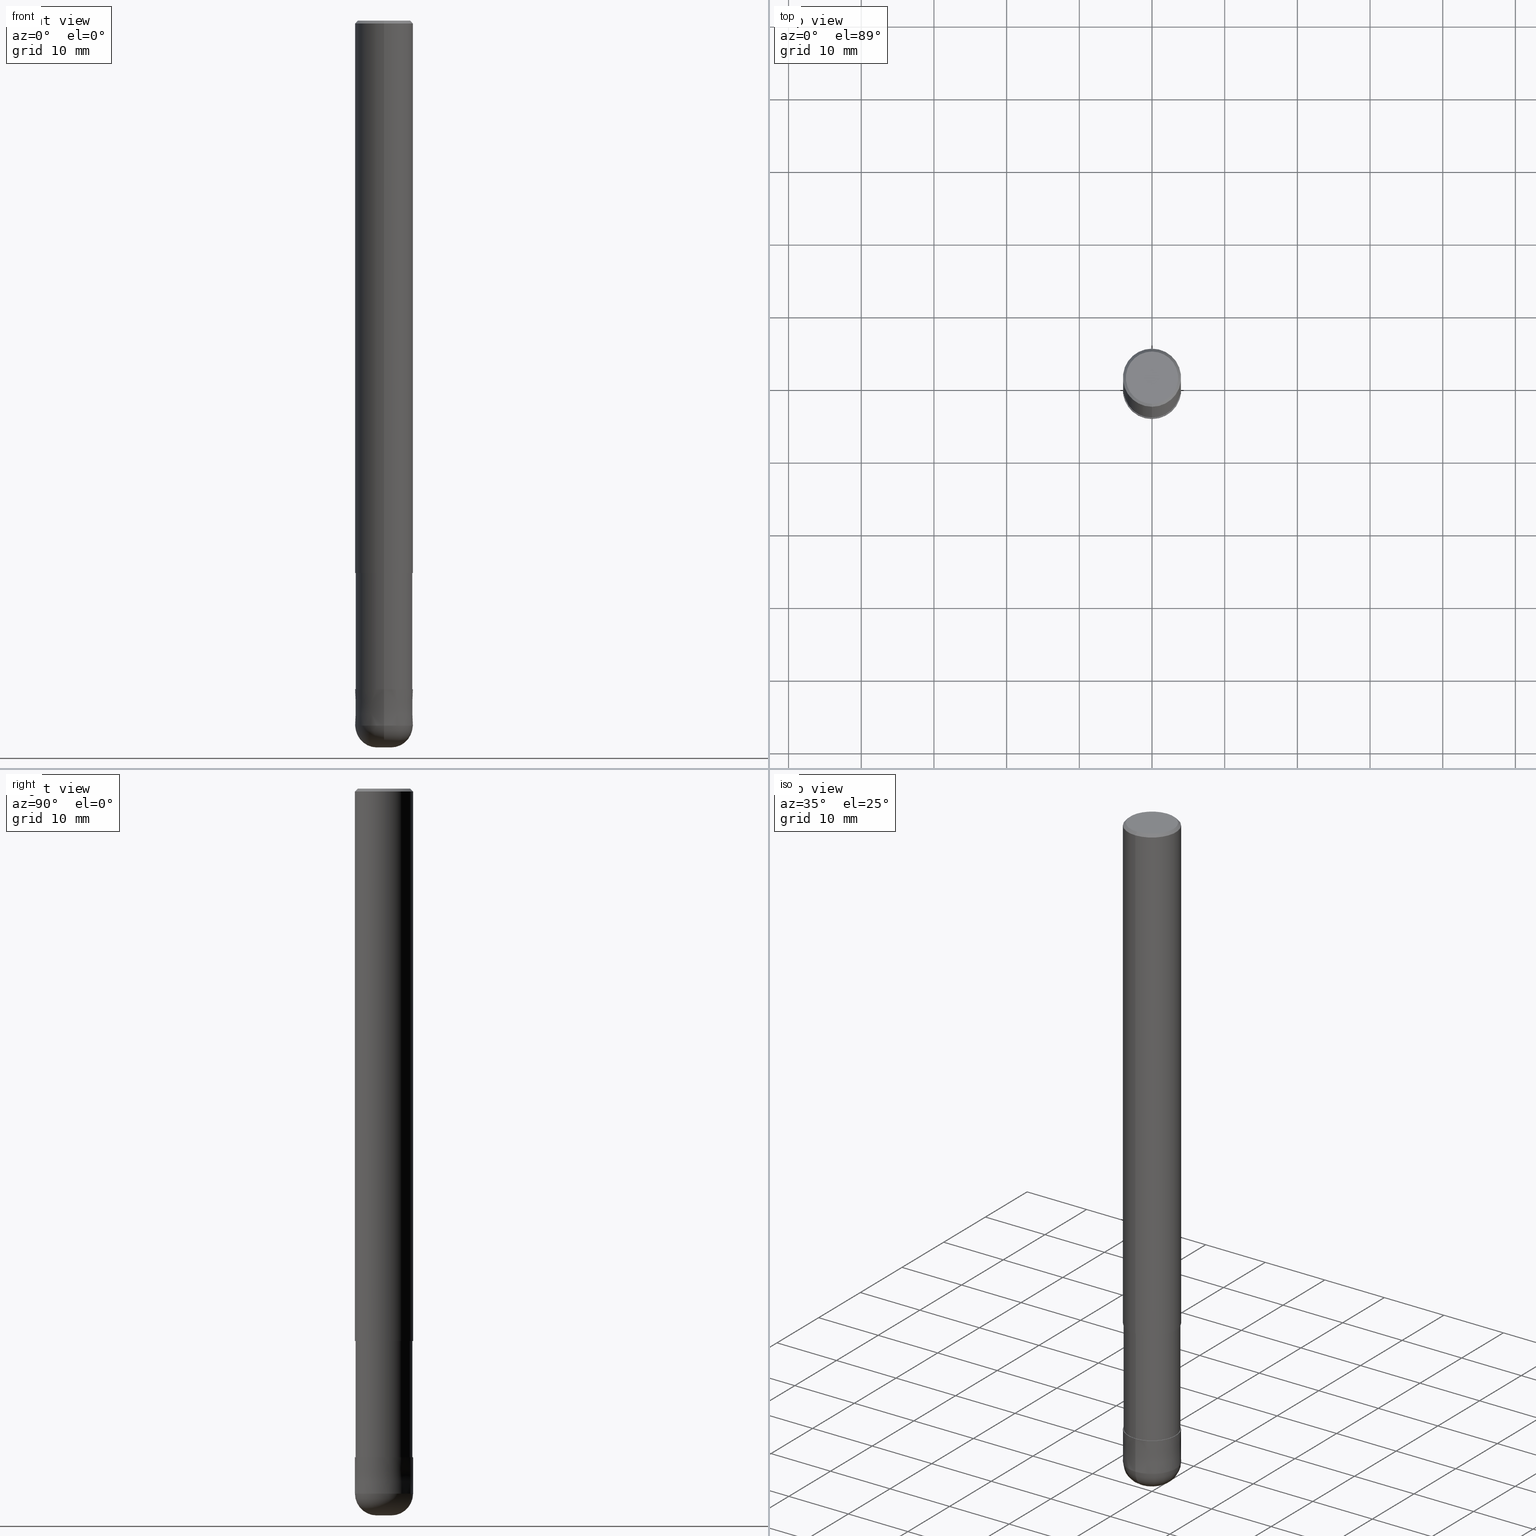
[diagram: canonical four-view strip — front | top / right | iso, engineering-drawing reading convention]
A machine part, canonical four-view strip (front | top / right | iso — engineering-drawing reading convention). The complete STEP part file that produces these views, byte-faithful:
ISO-10303-21;
HEADER;
FILE_DESCRIPTION(('no description'),'unknown implementation level');
FILE_NAME('HRRS4080-30-24-Huellk.stp','  ',('CIMSOURCE GmbH'),('CADClick - KiM GmbH - www.kimweb.de'),'unknown preprocess','ACIS','unknown authorization');
FILE_SCHEMA(('automotive_design'));
ENDSEC;
DATA;
#1=MECHANICAL_DESIGN_GEOMETRIC_PRESENTATION_REPRESENTATION(' ',(#14,#15,#16,#17,#18,#19,#20,#21,#22,#23,#24,#25,#26,#27,#28,#29,#30,#31,#32,#33,#34,#35,#36,#37,#38,#39,#40,#41,#42,#43,#44,#45,#46,#47,#48,#49,#50,#51,#52,#53,#54,#55,#56,#57,#58,#59,#60,#61,#62,#63,#64,#65,#66,#67,#68,#69,#70,#71,#72),#10);
#2=PRODUCT_DEFINITION_CONTEXT('',#73,'design');
#3=APPLICATION_PROTOCOL_DEFINITION('INTERNATIONAL STANDARD','automotive_design',1994,#73);
#4=PRODUCT_CATEGORY_RELATIONSHIP('NONE','NONE',#74,#75);
#5=SHAPE_DEFINITION_REPRESENTATION(#76,#77);
#6=PRODUCT_DEFINITION_CONTEXT('',#78,'design');
#7=APPLICATION_PROTOCOL_DEFINITION('INTERNATIONAL STANDARD','automotive_design',1994,#78);
#8=PRODUCT_CATEGORY_RELATIONSHIP('NONE','NONE',#79,#80);
#9=SHAPE_DEFINITION_REPRESENTATION(#81,#82);
#10= (GEOMETRIC_REPRESENTATION_CONTEXT(3)GLOBAL_UNCERTAINTY_ASSIGNED_CONTEXT((#85))GLOBAL_UNIT_ASSIGNED_CONTEXT((#87,#88,#89))REPRESENTATION_CONTEXT('NONE','WORKSPACE'));
#14=STYLED_ITEM('',(#91),#92);
#15=STYLED_ITEM('',(#93),#94);
#16=STYLED_ITEM('',(#95),#96);
#17=STYLED_ITEM('',(#97),#98);
#18=STYLED_ITEM('',(#99),#100);
#19=STYLED_ITEM('',(#101),#102);
#20=STYLED_ITEM('',(#103),#104);
#21=STYLED_ITEM('',(#105),#106);
#22=STYLED_ITEM('',(#107),#108);
#23=STYLED_ITEM('',(#109),#110);
#24=STYLED_ITEM('',(#111),#112);
#25=STYLED_ITEM('',(#113),#114);
#26=STYLED_ITEM('',(#115),#116);
#27=STYLED_ITEM('',(#117),#118);
#28=STYLED_ITEM('',(#119),#120);
#29=STYLED_ITEM('',(#121),#122);
#30=STYLED_ITEM('',(#123),#124);
#31=STYLED_ITEM('',(#125),#126);
#32=STYLED_ITEM('',(#127),#128);
#33=STYLED_ITEM('',(#129),#130);
#34=STYLED_ITEM('',(#131),#132);
#35=STYLED_ITEM('',(#133),#134);
#36=STYLED_ITEM('',(#135),#136);
#37=STYLED_ITEM('',(#137),#138);
#38=STYLED_ITEM('',(#139),#140);
#39=STYLED_ITEM('',(#141),#142);
#40=STYLED_ITEM('',(#143),#144);
#41=STYLED_ITEM('',(#145),#146);
#42=STYLED_ITEM('',(#147),#148);
#43=STYLED_ITEM('',(#149),#150);
#44=STYLED_ITEM('',(#151),#152);
#45=STYLED_ITEM('',(#153),#154);
#46=STYLED_ITEM('',(#155),#156);
#47=STYLED_ITEM('',(#157),#158);
#48=STYLED_ITEM('',(#159),#160);
#49=STYLED_ITEM('',(#161),#162);
#50=STYLED_ITEM('',(#163),#164);
#51=STYLED_ITEM('',(#165),#166);
#52=STYLED_ITEM('',(#167),#168);
#53=STYLED_ITEM('',(#169),#170);
#54=STYLED_ITEM('',(#171),#172);
#55=STYLED_ITEM('',(#173),#174);
#56=STYLED_ITEM('',(#175),#176);
#57=STYLED_ITEM('',(#177),#178);
#58=STYLED_ITEM('',(#179),#180);
#59=STYLED_ITEM('',(#181),#182);
#60=STYLED_ITEM('',(#183),#184);
#61=STYLED_ITEM('',(#185),#186);
#62=STYLED_ITEM('',(#187),#188);
#63=STYLED_ITEM('',(#189),#190);
#64=STYLED_ITEM('',(#191),#192);
#65=STYLED_ITEM('',(#193),#194);
#66=STYLED_ITEM('',(#195),#196);
#67=STYLED_ITEM('',(#197),#198);
#68=STYLED_ITEM('',(#199),#200);
#69=STYLED_ITEM('',(#201),#202);
#70=STYLED_ITEM('',(#203),#204);
#71=STYLED_ITEM('',(#205),#206);
#72=STYLED_ITEM('',(#207),#208);
#73=APPLICATION_CONTEXT(' ');
#74=PRODUCT_CATEGORY('part','NONE');
#75=PRODUCT_RELATED_PRODUCT_CATEGORY('detail',' ',(#209));
#76=PRODUCT_DEFINITION_SHAPE('NONE','NONE',#210);
#77=ADVANCED_BREP_SHAPE_REPRESENTATION('1',(#130,#211),#10);
#78=APPLICATION_CONTEXT(' ');
#79=PRODUCT_CATEGORY('part','NONE');
#80=PRODUCT_RELATED_PRODUCT_CATEGORY('detail',' ',(#212));
#81=PRODUCT_DEFINITION_SHAPE('NONE','NONE',#213);
#82=ADVANCED_BREP_SHAPE_REPRESENTATION('2',(#192,#214),#10);
#85=UNCERTAINTY_MEASURE_WITH_UNIT(LENGTH_MEASURE(1.0E-006),#87,'','');
#87= (CONVERSION_BASED_UNIT('MILLIMETRE',#217)LENGTH_UNIT()NAMED_UNIT(#220));
#88= (NAMED_UNIT(#222)PLANE_ANGLE_UNIT()SI_UNIT($,.RADIAN.));
#89= (NAMED_UNIT(#222)SOLID_ANGLE_UNIT()SI_UNIT($,.STERADIAN.));
#91=PRESENTATION_STYLE_ASSIGNMENT((#228));
#92=EDGE_CURVE('',#150,#136,#229,.T.);
#93=PRESENTATION_STYLE_ASSIGNMENT((#230));
#94=EDGE_CURVE('',#172,#198,#231,.T.);
#95=PRESENTATION_STYLE_ASSIGNMENT((#232));
#96=EDGE_CURVE('',#156,#124,#233,.T.);
#97=PRESENTATION_STYLE_ASSIGNMENT((#234));
#98=VERTEX_POINT('',#235);
#99=PRESENTATION_STYLE_ASSIGNMENT((#236));
#100=EDGE_CURVE('',#124,#164,#237,.T.);
#101=PRESENTATION_STYLE_ASSIGNMENT((#238));
#102=ADVANCED_FACE('',(#239),#240,.T.);
#103=PRESENTATION_STYLE_ASSIGNMENT((#241));
#104=EDGE_CURVE('',#198,#124,#242,.T.);
#105=PRESENTATION_STYLE_ASSIGNMENT((#243));
#106=ADVANCED_FACE('',(#244),#245,.T.);
#107=PRESENTATION_STYLE_ASSIGNMENT((#246));
#108=EDGE_CURVE('',#196,#118,#247,.T.);
#109=PRESENTATION_STYLE_ASSIGNMENT((#248));
#110=EDGE_CURVE('',#124,#198,#249,.T.);
#111=PRESENTATION_STYLE_ASSIGNMENT((#250));
#112=EDGE_CURVE('',#198,#146,#251,.T.);
#113=PRESENTATION_STYLE_ASSIGNMENT((#252));
#114=EDGE_CURVE('',#194,#158,#253,.T.);
#115=PRESENTATION_STYLE_ASSIGNMENT((#254));
#116=EDGE_CURVE('',#194,#136,#255,.T.);
#117=PRESENTATION_STYLE_ASSIGNMENT((#256));
#118=VERTEX_POINT('',#257);
#119=PRESENTATION_STYLE_ASSIGNMENT((#258));
#120=EDGE_CURVE('',#146,#156,#259,.T.);
#121=PRESENTATION_STYLE_ASSIGNMENT((#260));
#122=EDGE_CURVE('',#172,#164,#261,.T.);
#123=PRESENTATION_STYLE_ASSIGNMENT((#262));
#124=VERTEX_POINT('',#263);
#125=PRESENTATION_STYLE_ASSIGNMENT((#264));
#126=EDGE_CURVE('',#164,#172,#265,.T.);
#127=PRESENTATION_STYLE_ASSIGNMENT((#266));
#128=VERTEX_POINT('',#267);
#129=PRESENTATION_STYLE_ASSIGNMENT((#268));
#130=MANIFOLD_SOLID_BREP('1',#269);
#131=PRESENTATION_STYLE_ASSIGNMENT((#270));
#132=EDGE_CURVE('',#204,#134,#271,.T.);
#133=PRESENTATION_STYLE_ASSIGNMENT((#272));
#134=VERTEX_POINT('',#273);
#135=PRESENTATION_STYLE_ASSIGNMENT((#274));
#136=VERTEX_POINT('',#275);
#137=PRESENTATION_STYLE_ASSIGNMENT((#276));
#138=ADVANCED_FACE('',(#277),#278,.T.);
#139=PRESENTATION_STYLE_ASSIGNMENT((#279));
#140=EDGE_CURVE('',#134,#98,#280,.T.);
#141=PRESENTATION_STYLE_ASSIGNMENT((#281));
#142=EDGE_CURVE('',#196,#134,#282,.T.);
#143=PRESENTATION_STYLE_ASSIGNMENT((#283));
#144=EDGE_CURVE('',#150,#158,#284,.T.);
#145=PRESENTATION_STYLE_ASSIGNMENT((#285));
#146=VERTEX_POINT('',#286);
#147=PRESENTATION_STYLE_ASSIGNMENT((#287));
#148=ADVANCED_FACE('',(#288),#289,.T.);
#149=PRESENTATION_STYLE_ASSIGNMENT((#290));
#150=VERTEX_POINT('',#291);
#151=PRESENTATION_STYLE_ASSIGNMENT((#292));
#152=ADVANCED_FACE('',(#293),#294,.T.);
#153=PRESENTATION_STYLE_ASSIGNMENT((#295));
#154=EDGE_CURVE('',#98,#128,#296,.T.);
#155=PRESENTATION_STYLE_ASSIGNMENT((#297));
#156=VERTEX_POINT('',#298);
#157=PRESENTATION_STYLE_ASSIGNMENT((#299));
#158=VERTEX_POINT('',#300);
#159=PRESENTATION_STYLE_ASSIGNMENT((#301));
#160=ADVANCED_FACE('',(#302,#303),#304,.T.);
#161=PRESENTATION_STYLE_ASSIGNMENT((#305));
#162=EDGE_CURVE('',#156,#146,#306,.T.);
#163=PRESENTATION_STYLE_ASSIGNMENT((#307));
#164=VERTEX_POINT('',#308);
#165=PRESENTATION_STYLE_ASSIGNMENT((#309));
#166=EDGE_CURVE('',#98,#134,#310,.T.);
#167=PRESENTATION_STYLE_ASSIGNMENT((#311));
#168=ADVANCED_FACE('',(#312),#313,.T.);
#169=PRESENTATION_STYLE_ASSIGNMENT((#314));
#170=ADVANCED_FACE('',(#315),#316,.T.);
#171=PRESENTATION_STYLE_ASSIGNMENT((#317));
#172=VERTEX_POINT('',#318);
#173=PRESENTATION_STYLE_ASSIGNMENT((#319));
#174=EDGE_CURVE('',#128,#204,#320,.T.);
#175=PRESENTATION_STYLE_ASSIGNMENT((#321));
#176=ADVANCED_FACE('',(#322),#323,.T.);
#177=PRESENTATION_STYLE_ASSIGNMENT((#324));
#178=ADVANCED_FACE('',(#325),#326,.T.);
#179=PRESENTATION_STYLE_ASSIGNMENT((#327));
#180=ADVANCED_FACE('',(#328),#329,.T.);
#181=PRESENTATION_STYLE_ASSIGNMENT((#330));
#182=EDGE_CURVE('',#98,#118,#331,.T.);
#183=PRESENTATION_STYLE_ASSIGNMENT((#332));
#184=EDGE_CURVE('',#204,#128,#333,.T.);
#185=PRESENTATION_STYLE_ASSIGNMENT((#334));
#186=EDGE_CURVE('',#136,#194,#335,.T.);
#187=PRESENTATION_STYLE_ASSIGNMENT((#336));
#188=EDGE_CURVE('',#158,#150,#337,.T.);
#189=PRESENTATION_STYLE_ASSIGNMENT((#338));
#190=ADVANCED_FACE('',(#339),#340,.T.);
#191=PRESENTATION_STYLE_ASSIGNMENT((#341));
#192=MANIFOLD_SOLID_BREP('2',#342);
#193=PRESENTATION_STYLE_ASSIGNMENT((#343));
#194=VERTEX_POINT('',#344);
#195=PRESENTATION_STYLE_ASSIGNMENT((#345));
#196=VERTEX_POINT('',#346);
#197=PRESENTATION_STYLE_ASSIGNMENT((#347));
#198=VERTEX_POINT('',#348);
#199=PRESENTATION_STYLE_ASSIGNMENT((#349));
#200=ADVANCED_FACE('',(#350),#351,.T.);
#201=PRESENTATION_STYLE_ASSIGNMENT((#352));
#202=EDGE_CURVE('',#118,#196,#353,.T.);
#203=PRESENTATION_STYLE_ASSIGNMENT((#354));
#204=VERTEX_POINT('',#355);
#205=PRESENTATION_STYLE_ASSIGNMENT((#356));
#206=ADVANCED_FACE('',(#357),#358,.T.);
#207=PRESENTATION_STYLE_ASSIGNMENT((#359));
#208=ADVANCED_FACE('',(#360),#361,.T.);
#209=PRODUCT('1','1','PART-1-DESC',(#362));
#210=PRODUCT_DEFINITION('NONE','NONE',#363,#2);
#211=AXIS2_PLACEMENT_3D('',#364,#365,#366);
#212=PRODUCT('2','2','PART-2-DESC',(#367));
#213=PRODUCT_DEFINITION('NONE','NONE',#368,#6);
#214=AXIS2_PLACEMENT_3D('',#369,#370,#371);
#217=LENGTH_MEASURE_WITH_UNIT(LENGTH_MEASURE(1.0),#372);
#220=DIMENSIONAL_EXPONENTS(1.0,0.0,0.0,0.0,0.0,0.0,0.0);
#222=DIMENSIONAL_EXPONENTS(0.0,0.0,0.0,0.0,0.0,0.0,0.0);
#228=CURVE_STYLE('',#373,POSITIVE_LENGTH_MEASURE(1.0E-006),#374);
#229=LINE('',#375,#376);
#230=CURVE_STYLE('',#377,POSITIVE_LENGTH_MEASURE(1.0E-006),#378);
#231=LINE('',#379,#380);
#232=CURVE_STYLE('',#381,POSITIVE_LENGTH_MEASURE(1.0E-006),#382);
#233=LINE('',#383,#384);
#234=POINT_STYLE(' ',#385,POSITIVE_LENGTH_MEASURE(1.0E-006),#386);
#235=CARTESIAN_POINT('',(4.89842541528951E-016,-4.0,-97.0));
#236=CURVE_STYLE('',#387,POSITIVE_LENGTH_MEASURE(1.0E-006),#388);
#237=LINE('',#389,#390);
#238=SURFACE_STYLE_USAGE(.BOTH.,#391);
#239=FACE_OUTER_BOUND('',#392,.T.);
#240=CONICAL_SURFACE('',#393,3.99995,1.99999999973755E-005);
#241=CURVE_STYLE('',#394,POSITIVE_LENGTH_MEASURE(1.0E-006),#395);
#242=CIRCLE('',#396,4.0);
#243=SURFACE_STYLE_USAGE(.BOTH.,#397);
#244=FACE_OUTER_BOUND('',#398,.T.);
#245=PLANE('',#399);
#246=CURVE_STYLE('',#400,POSITIVE_LENGTH_MEASURE(1.0E-006),#401);
#247=CIRCLE('',#402,3.9999);
#248=CURVE_STYLE('',#403,POSITIVE_LENGTH_MEASURE(1.0E-006),#404);
#249=CIRCLE('',#405,4.0);
#250=CURVE_STYLE('',#406,POSITIVE_LENGTH_MEASURE(1.0E-006),#407);
#251=LINE('',#408,#409);
#252=CURVE_STYLE('',#410,POSITIVE_LENGTH_MEASURE(1.0E-006),#411);
#253=LINE('',#412,#413);
#254=CURVE_STYLE('',#414,POSITIVE_LENGTH_MEASURE(1.0E-006),#415);
#255=CIRCLE('',#416,3.90995);
#256=POINT_STYLE(' ',#417,POSITIVE_LENGTH_MEASURE(1.0E-006),#418);
#257=CARTESIAN_POINT('',(4.89830295465413E-016,-3.9999,-92.0));
#258=CURVE_STYLE('',#419,POSITIVE_LENGTH_MEASURE(1.0E-006),#420);
#259=CIRCLE('',#421,3.6);
#260=CURVE_STYLE('',#422,POSITIVE_LENGTH_MEASURE(1.0E-006),#423);
#261=CIRCLE('',#424,4.0);
#262=POINT_STYLE(' ',#425,POSITIVE_LENGTH_MEASURE(1.0E-006),#426);
#263=CARTESIAN_POINT('',(0.0,4.0,-0.400000000000006));
#264=CURVE_STYLE('',#427,POSITIVE_LENGTH_MEASURE(1.0E-006),#428);
#265=CIRCLE('',#429,4.0);
#266=POINT_STYLE(' ',#430,POSITIVE_LENGTH_MEASURE(1.0E-006),#431);
#267=CARTESIAN_POINT('',(1.22460635382238E-016,-1.0,-100.0));
#268=SURFACE_STYLE_USAGE(.BOTH.,#432);
#269=CLOSED_SHELL('',(#180,#138,#152,#160,#208,#168,#176,#206,#170));
#270=CURVE_STYLE('',#433,POSITIVE_LENGTH_MEASURE(1.0E-006),#434);
#271=CIRCLE('',#435,3.0);
#272=POINT_STYLE(' ',#436,POSITIVE_LENGTH_MEASURE(1.0E-006),#437);
#273=CARTESIAN_POINT('',(0.0,4.0,-97.0));
#274=POINT_STYLE(' ',#438,POSITIVE_LENGTH_MEASURE(1.0E-006),#439);
#275=CARTESIAN_POINT('',(0.0,3.90995,-92.0));
#276=SURFACE_STYLE_USAGE(.BOTH.,#440);
#277=FACE_OUTER_BOUND('',#441,.T.);
#278=CYLINDRICAL_SURFACE('',#442,4.0);
#279=CURVE_STYLE('',#443,POSITIVE_LENGTH_MEASURE(1.0E-006),#444);
#280=CIRCLE('',#445,4.0);
#281=CURVE_STYLE('',#446,POSITIVE_LENGTH_MEASURE(1.0E-006),#447);
#282=LINE('',#448,#449);
#283=CURVE_STYLE('',#450,POSITIVE_LENGTH_MEASURE(1.0E-006),#451);
#284=CIRCLE('',#452,3.90995);
#285=POINT_STYLE(' ',#453,POSITIVE_LENGTH_MEASURE(1.0E-006),#454);
#286=CARTESIAN_POINT('',(4.40858287376056E-016,-3.6,0.0));
#287=SURFACE_STYLE_USAGE(.BOTH.,#455);
#288=FACE_OUTER_BOUND('',#456,.T.);
#289=CONICAL_SURFACE('',#457,3.99995,1.99999999973755E-005);
#290=POINT_STYLE(' ',#458,POSITIVE_LENGTH_MEASURE(1.0E-006),#459);
#291=CARTESIAN_POINT('',(0.0,3.90995,-76.0));
#292=SURFACE_STYLE_USAGE(.BOTH.,#460);
#293=FACE_OUTER_BOUND('',#461,.T.);
#294=CONICAL_SURFACE('',#462,3.8,0.785398163397441);
#295=CURVE_STYLE('',#463,POSITIVE_LENGTH_MEASURE(1.0E-006),#464);
#296=CIRCLE('',#465,3.0);
#297=POINT_STYLE(' ',#466,POSITIVE_LENGTH_MEASURE(1.0E-006),#467);
#298=CARTESIAN_POINT('',(0.0,3.6,0.0));
#299=POINT_STYLE(' ',#468,POSITIVE_LENGTH_MEASURE(1.0E-006),#469);
#300=CARTESIAN_POINT('',(4.7881496131278E-016,-3.90995,-76.0));
#301=SURFACE_STYLE_USAGE(.BOTH.,#470);
#302=FACE_OUTER_BOUND('',#471,.T.);
#303=FACE_BOUND('',#472,.T.);
#304=PLANE('',#473);
#305=CURVE_STYLE('',#474,POSITIVE_LENGTH_MEASURE(1.0E-006),#475);
#306=CIRCLE('',#476,3.6);
#307=POINT_STYLE(' ',#477,POSITIVE_LENGTH_MEASURE(1.0E-006),#478);
#308=CARTESIAN_POINT('',(0.0,4.0,-76.0));
#309=CURVE_STYLE('',#479,POSITIVE_LENGTH_MEASURE(1.0E-006),#480);
#310=CIRCLE('',#481,4.0);
#311=SURFACE_STYLE_USAGE(.BOTH.,#482);
#312=FACE_OUTER_BOUND('',#483,.T.);
#313=CONICAL_SURFACE('',#484,3.8,0.785398163397441);
#314=SURFACE_STYLE_USAGE(.BOTH.,#485);
#315=FACE_OUTER_BOUND('',#486,.T.);
#316=PLANE('',#487);
#317=POINT_STYLE(' ',#488,POSITIVE_LENGTH_MEASURE(1.0E-006),#489);
#318=CARTESIAN_POINT('',(4.89842541528951E-016,-4.0,-76.0));
#319=CURVE_STYLE('',#490,POSITIVE_LENGTH_MEASURE(1.0E-006),#491);
#320=CIRCLE('',#492,1.0);
#321=SURFACE_STYLE_USAGE(.BOTH.,#493);
#322=FACE_OUTER_BOUND('',#494,.T.);
#323=CYLINDRICAL_SURFACE('',#495,4.0);
#324=SURFACE_STYLE_USAGE(.BOTH.,#496);
#325=FACE_OUTER_BOUND('',#497,.T.);
#326=TOROIDAL_SURFACE('',#498,0.999999999999996,3.0);
#327=SURFACE_STYLE_USAGE(.BOTH.,#499);
#328=FACE_OUTER_BOUND('',#500,.T.);
#329=CYLINDRICAL_SURFACE('',#501,3.90995);
#330=CURVE_STYLE('',#502,POSITIVE_LENGTH_MEASURE(1.0E-006),#503);
#331=LINE('',#504,#505);
#332=CURVE_STYLE('',#506,POSITIVE_LENGTH_MEASURE(1.0E-006),#507);
#333=CIRCLE('',#508,1.0);
#334=CURVE_STYLE('',#509,POSITIVE_LENGTH_MEASURE(1.0E-006),#510);
#335=CIRCLE('',#511,3.90995);
#336=CURVE_STYLE('',#512,POSITIVE_LENGTH_MEASURE(1.0E-006),#513);
#337=CIRCLE('',#514,3.90995);
#338=SURFACE_STYLE_USAGE(.BOTH.,#515);
#339=FACE_OUTER_BOUND('',#516,.T.);
#340=TOROIDAL_SURFACE('',#517,0.999999999999996,3.0);
#341=SURFACE_STYLE_USAGE(.BOTH.,#518);
#342=CLOSED_SHELL('',(#178,#148,#200,#102,#190,#106));
#343=POINT_STYLE(' ',#519,POSITIVE_LENGTH_MEASURE(1.0E-006),#520);
#344=CARTESIAN_POINT('',(4.7881496131278E-016,-3.90995,-92.0));
#345=POINT_STYLE(' ',#521,POSITIVE_LENGTH_MEASURE(1.0E-006),#522);
#346=CARTESIAN_POINT('',(0.0,3.9999,-92.0));
#347=POINT_STYLE(' ',#523,POSITIVE_LENGTH_MEASURE(1.0E-006),#524);
#348=CARTESIAN_POINT('',(4.89842541528951E-016,-4.0,-0.400000000000006));
#349=SURFACE_STYLE_USAGE(.BOTH.,#525);
#350=FACE_OUTER_BOUND('',#526,.T.);
#351=PLANE('',#527);
#352=CURVE_STYLE('',#528,POSITIVE_LENGTH_MEASURE(1.0E-006),#529);
#353=CIRCLE('',#530,3.9999);
#354=POINT_STYLE(' ',#531,POSITIVE_LENGTH_MEASURE(1.0E-006),#532);
#355=CARTESIAN_POINT('',(0.0,1.0,-100.0));
#356=SURFACE_STYLE_USAGE(.BOTH.,#533);
#357=FACE_OUTER_BOUND('',#534,.T.);
#358=CYLINDRICAL_SURFACE('',#535,3.90995);
#359=SURFACE_STYLE_USAGE(.BOTH.,#536);
#360=FACE_OUTER_BOUND('',#537,.T.);
#361=PLANE('',#538);
#362=PRODUCT_CONTEXT('',#73,'mechanical');
#363=PRODUCT_DEFINITION_FORMATION_WITH_SPECIFIED_SOURCE(' ','NONE',#209,.NOT_KNOWN.);
#364=CARTESIAN_POINT('',(0.0,0.0,0.0));
#365=DIRECTION('',(0.0,0.0,1.0));
#366=DIRECTION('',(1.0,0.0,0.0));
#367=PRODUCT_CONTEXT('',#78,'mechanical');
#368=PRODUCT_DEFINITION_FORMATION_WITH_SPECIFIED_SOURCE(' ','NONE',#212,.NOT_KNOWN.);
#369=CARTESIAN_POINT('',(0.0,0.0,0.0));
#370=DIRECTION('',(0.0,0.0,1.0));
#371=DIRECTION('',(1.0,0.0,0.0));
#372= (NAMED_UNIT(#220)LENGTH_UNIT()SI_UNIT(.MILLI.,.METRE.));
#373=DRAUGHTING_PRE_DEFINED_CURVE_FONT('continuous');
#374=COLOUR_RGB('',0.498039215803146,0.498039215803146,0.498039215803146);
#375=CARTESIAN_POINT('',(-4.7881496131278E-016,3.90995,-84.0));
#376=VECTOR('',#540,1.0);
#377=DRAUGHTING_PRE_DEFINED_CURVE_FONT('continuous');
#378=COLOUR_RGB('',0.498039215803146,0.498039215803146,0.498039215803146);
#379=CARTESIAN_POINT('',(4.89842541528951E-016,-4.0,-38.2));
#380=VECTOR('',#541,1.0);
#381=DRAUGHTING_PRE_DEFINED_CURVE_FONT('continuous');
#382=COLOUR_RGB('',0.498039215803146,0.498039215803146,0.498039215803146);
#383=CARTESIAN_POINT('',(-4.65350414452503E-016,3.8,-0.200000000000003));
#384=VECTOR('',#542,1.0);
#385=PRE_DEFINED_MARKER('');
#386=COLOUR_RGB('',0.800000011920929,0.800000011920929,0.800000011920929);
#387=DRAUGHTING_PRE_DEFINED_CURVE_FONT('continuous');
#388=COLOUR_RGB('',0.498039215803146,0.498039215803146,0.498039215803146);
#389=CARTESIAN_POINT('',(-4.89842541528951E-016,4.0,-38.2));
#390=VECTOR('',#543,1.0);
#391=SURFACE_SIDE_STYLE('',(#544));
#392=EDGE_LOOP('',(#545,#546,#547,#548));
#393=AXIS2_PLACEMENT_3D('',#549,#550,#551);
#394=DRAUGHTING_PRE_DEFINED_CURVE_FONT('continuous');
#395=COLOUR_RGB('',0.498039215803146,0.498039215803146,0.498039215803146);
#396=AXIS2_PLACEMENT_3D('',#552,#553,#554);
#397=SURFACE_SIDE_STYLE('',(#555));
#398=EDGE_LOOP('',(#556,#557));
#399=AXIS2_PLACEMENT_3D('',#558,#559,#560);
#400=DRAUGHTING_PRE_DEFINED_CURVE_FONT('continuous');
#401=COLOUR_RGB('',0.800000011920929,0.800000011920929,0.800000011920929);
#402=AXIS2_PLACEMENT_3D('',#561,#562,#563);
#403=DRAUGHTING_PRE_DEFINED_CURVE_FONT('continuous');
#404=COLOUR_RGB('',0.498039215803146,0.498039215803146,0.498039215803146);
#405=AXIS2_PLACEMENT_3D('',#564,#565,#566);
#406=DRAUGHTING_PRE_DEFINED_CURVE_FONT('continuous');
#407=COLOUR_RGB('',0.498039215803146,0.498039215803146,0.498039215803146);
#408=CARTESIAN_POINT('',(4.65350414452503E-016,-3.8,-0.200000000000003));
#409=VECTOR('',#567,1.0);
#410=DRAUGHTING_PRE_DEFINED_CURVE_FONT('continuous');
#411=COLOUR_RGB('',0.498039215803146,0.498039215803146,0.498039215803146);
#412=CARTESIAN_POINT('',(4.7881496131278E-016,-3.90995,-84.0));
#413=VECTOR('',#568,1.0);
#414=DRAUGHTING_PRE_DEFINED_CURVE_FONT('continuous');
#415=COLOUR_RGB('',0.498039215803146,0.498039215803146,0.498039215803146);
#416=AXIS2_PLACEMENT_3D('',#569,#570,#571);
#417=PRE_DEFINED_MARKER('');
#418=COLOUR_RGB('',0.800000011920929,0.800000011920929,0.800000011920929);
#419=DRAUGHTING_PRE_DEFINED_CURVE_FONT('continuous');
#420=COLOUR_RGB('',0.498039215803146,0.498039215803146,0.498039215803146);
#421=AXIS2_PLACEMENT_3D('',#572,#573,#574);
#422=DRAUGHTING_PRE_DEFINED_CURVE_FONT('continuous');
#423=COLOUR_RGB('',0.498039215803146,0.498039215803146,0.498039215803146);
#424=AXIS2_PLACEMENT_3D('',#575,#576,#577);
#425=PRE_DEFINED_MARKER('');
#426=COLOUR_RGB('',0.498039215803146,0.498039215803146,0.498039215803146);
#427=DRAUGHTING_PRE_DEFINED_CURVE_FONT('continuous');
#428=COLOUR_RGB('',0.498039215803146,0.498039215803146,0.498039215803146);
#429=AXIS2_PLACEMENT_3D('',#578,#579,#580);
#430=PRE_DEFINED_MARKER('');
#431=COLOUR_RGB('',0.800000011920929,0.800000011920929,0.800000011920929);
#432=SURFACE_SIDE_STYLE('',(#581));
#433=DRAUGHTING_PRE_DEFINED_CURVE_FONT('continuous');
#434=COLOUR_RGB('',0.800000011920929,0.800000011920929,0.800000011920929);
#435=AXIS2_PLACEMENT_3D('',#582,#583,#584);
#436=PRE_DEFINED_MARKER('');
#437=COLOUR_RGB('',0.800000011920929,0.800000011920929,0.800000011920929);
#438=PRE_DEFINED_MARKER('');
#439=COLOUR_RGB('',0.498039215803146,0.498039215803146,0.498039215803146);
#440=SURFACE_SIDE_STYLE('',(#585));
#441=EDGE_LOOP('',(#586,#587,#588,#589));
#442=AXIS2_PLACEMENT_3D('',#590,#591,#592);
#443=DRAUGHTING_PRE_DEFINED_CURVE_FONT('continuous');
#444=COLOUR_RGB('',0.800000011920929,0.800000011920929,0.800000011920929);
#445=AXIS2_PLACEMENT_3D('',#593,#594,#595);
#446=DRAUGHTING_PRE_DEFINED_CURVE_FONT('continuous');
#447=COLOUR_RGB('',0.800000011920929,0.800000011920929,0.800000011920929);
#448=CARTESIAN_POINT('',(-4.89836418497182E-016,3.99995,-94.5));
#449=VECTOR('',#596,1.0);
#450=DRAUGHTING_PRE_DEFINED_CURVE_FONT('continuous');
#451=COLOUR_RGB('',0.498039215803146,0.498039215803146,0.498039215803146);
#452=AXIS2_PLACEMENT_3D('',#597,#598,#599);
#453=PRE_DEFINED_MARKER('');
#454=COLOUR_RGB('',0.498039215803146,0.498039215803146,0.498039215803146);
#455=SURFACE_SIDE_STYLE('',(#600));
#456=EDGE_LOOP('',(#601,#602,#603,#604));
#457=AXIS2_PLACEMENT_3D('',#605,#606,#607);
#458=PRE_DEFINED_MARKER('');
#459=COLOUR_RGB('',0.498039215803146,0.498039215803146,0.498039215803146);
#460=SURFACE_SIDE_STYLE('',(#608));
#461=EDGE_LOOP('',(#609,#610,#611,#612));
#462=AXIS2_PLACEMENT_3D('',#613,#614,#615);
#463=DRAUGHTING_PRE_DEFINED_CURVE_FONT('continuous');
#464=COLOUR_RGB('',0.800000011920929,0.800000011920929,0.800000011920929);
#465=AXIS2_PLACEMENT_3D('',#616,#617,#618);
#466=PRE_DEFINED_MARKER('');
#467=COLOUR_RGB('',0.498039215803146,0.498039215803146,0.498039215803146);
#468=PRE_DEFINED_MARKER('');
#469=COLOUR_RGB('',0.498039215803146,0.498039215803146,0.498039215803146);
#470=SURFACE_SIDE_STYLE('',(#619));
#471=EDGE_LOOP('',(#620,#621));
#472=EDGE_LOOP('',(#622,#623));
#473=AXIS2_PLACEMENT_3D('',#624,#625,#626);
#474=DRAUGHTING_PRE_DEFINED_CURVE_FONT('continuous');
#475=COLOUR_RGB('',0.498039215803146,0.498039215803146,0.498039215803146);
#476=AXIS2_PLACEMENT_3D('',#627,#628,#629);
#477=PRE_DEFINED_MARKER('');
#478=COLOUR_RGB('',0.498039215803146,0.498039215803146,0.498039215803146);
#479=DRAUGHTING_PRE_DEFINED_CURVE_FONT('continuous');
#480=COLOUR_RGB('',0.800000011920929,0.800000011920929,0.800000011920929);
#481=AXIS2_PLACEMENT_3D('',#630,#631,#632);
#482=SURFACE_SIDE_STYLE('',(#633));
#483=EDGE_LOOP('',(#634,#635,#636,#637));
#484=AXIS2_PLACEMENT_3D('',#638,#639,#640);
#485=SURFACE_SIDE_STYLE('',(#641));
#486=EDGE_LOOP('',(#642,#643));
#487=AXIS2_PLACEMENT_3D('',#644,#645,#646);
#488=PRE_DEFINED_MARKER('');
#489=COLOUR_RGB('',0.498039215803146,0.498039215803146,0.498039215803146);
#490=DRAUGHTING_PRE_DEFINED_CURVE_FONT('continuous');
#491=COLOUR_RGB('',0.800000011920929,0.800000011920929,0.800000011920929);
#492=AXIS2_PLACEMENT_3D('',#647,#648,#649);
#493=SURFACE_SIDE_STYLE('',(#650));
#494=EDGE_LOOP('',(#651,#652,#653,#654));
#495=AXIS2_PLACEMENT_3D('',#655,#656,#657);
#496=SURFACE_SIDE_STYLE('',(#658));
#497=EDGE_LOOP('',(#659,#660,#661,#662));
#498=AXIS2_PLACEMENT_3D('',#663,#664,#665);
#499=SURFACE_SIDE_STYLE('',(#666));
#500=EDGE_LOOP('',(#667,#668,#669,#670));
#501=AXIS2_PLACEMENT_3D('',#671,#672,#673);
#502=DRAUGHTING_PRE_DEFINED_CURVE_FONT('continuous');
#503=COLOUR_RGB('',0.800000011920929,0.800000011920929,0.800000011920929);
#504=CARTESIAN_POINT('',(4.89836418497182E-016,-3.99995,-94.5));
#505=VECTOR('',#674,1.0);
#506=DRAUGHTING_PRE_DEFINED_CURVE_FONT('continuous');
#507=COLOUR_RGB('',0.800000011920929,0.800000011920929,0.800000011920929);
#508=AXIS2_PLACEMENT_3D('',#675,#676,#677);
#509=DRAUGHTING_PRE_DEFINED_CURVE_FONT('continuous');
#510=COLOUR_RGB('',0.498039215803146,0.498039215803146,0.498039215803146);
#511=AXIS2_PLACEMENT_3D('',#678,#679,#680);
#512=DRAUGHTING_PRE_DEFINED_CURVE_FONT('continuous');
#513=COLOUR_RGB('',0.498039215803146,0.498039215803146,0.498039215803146);
#514=AXIS2_PLACEMENT_3D('',#681,#682,#683);
#515=SURFACE_SIDE_STYLE('',(#684));
#516=EDGE_LOOP('',(#685,#686,#687,#688));
#517=AXIS2_PLACEMENT_3D('',#689,#690,#691);
#518=SURFACE_SIDE_STYLE('',(#692));
#519=PRE_DEFINED_MARKER('');
#520=COLOUR_RGB('',0.498039215803146,0.498039215803146,0.498039215803146);
#521=PRE_DEFINED_MARKER('');
#522=COLOUR_RGB('',0.800000011920929,0.800000011920929,0.800000011920929);
#523=PRE_DEFINED_MARKER('');
#524=COLOUR_RGB('',0.498039215803146,0.498039215803146,0.498039215803146);
#525=SURFACE_SIDE_STYLE('',(#693));
#526=EDGE_LOOP('',(#694,#695));
#527=AXIS2_PLACEMENT_3D('',#696,#697,#698);
#528=DRAUGHTING_PRE_DEFINED_CURVE_FONT('continuous');
#529=COLOUR_RGB('',0.800000011920929,0.800000011920929,0.800000011920929);
#530=AXIS2_PLACEMENT_3D('',#699,#700,#701);
#531=PRE_DEFINED_MARKER('');
#532=COLOUR_RGB('',0.800000011920929,0.800000011920929,0.800000011920929);
#533=SURFACE_SIDE_STYLE('',(#702));
#534=EDGE_LOOP('',(#703,#704,#705,#706));
#535=AXIS2_PLACEMENT_3D('',#707,#708,#709);
#536=SURFACE_SIDE_STYLE('',(#710));
#537=EDGE_LOOP('',(#711,#712));
#538=AXIS2_PLACEMENT_3D('',#713,#714,#715);
#540=DIRECTION('',(0.0,0.0,-1.0));
#541=DIRECTION('',(-0.0,-0.0,1.0));
#542=DIRECTION('',(-8.65927457071929E-017,0.707106781186542,-0.707106781186553));
#543=DIRECTION('',(0.0,0.0,-1.0));
#544=SURFACE_STYLE_FILL_AREA(#716);
#545=ORIENTED_EDGE('',*,*,#142,.T.);
#546=ORIENTED_EDGE('',*,*,#166,.F.);
#547=ORIENTED_EDGE('',*,*,#182,.T.);
#548=ORIENTED_EDGE('',*,*,#202,.T.);
#549=CARTESIAN_POINT('',(0.0,0.0,-94.5));
#550=DIRECTION('',(0.0,-0.0,-1.0));
#551=DIRECTION('',(0.0,1.0,0.0));
#552=CARTESIAN_POINT('',(0.0,0.0,-0.400000000000006));
#553=DIRECTION('',(0.0,0.0,-1.0));
#554=DIRECTION('',(0.0,1.0,0.0));
#555=SURFACE_STYLE_FILL_AREA(#717);
#556=ORIENTED_EDGE('',*,*,#184,.T.);
#557=ORIENTED_EDGE('',*,*,#174,.T.);
#558=CARTESIAN_POINT('',(0.0,0.5,-100.0));
#559=DIRECTION('',(0.0,0.0,-1.0));
#560=DIRECTION('',(0.0,1.0,0.0));
#561=CARTESIAN_POINT('',(0.0,0.0,-92.0));
#562=DIRECTION('',(0.0,0.0,-1.0));
#563=DIRECTION('',(0.0,1.0,0.0));
#564=CARTESIAN_POINT('',(0.0,0.0,-0.400000000000006));
#565=DIRECTION('',(0.0,0.0,-1.0));
#566=DIRECTION('',(0.0,1.0,0.0));
#567=DIRECTION('',(-8.65927457071929E-017,0.707106781186542,0.707106781186553));
#568=DIRECTION('',(-0.0,-0.0,1.0));
#569=CARTESIAN_POINT('',(0.0,0.0,-92.0));
#570=DIRECTION('',(0.0,0.0,-1.0));
#571=DIRECTION('',(0.0,1.0,0.0));
#572=CARTESIAN_POINT('',(0.0,0.0,0.0));
#573=DIRECTION('',(0.0,0.0,-1.0));
#574=DIRECTION('',(0.0,1.0,0.0));
#575=CARTESIAN_POINT('',(0.0,0.0,-76.0));
#576=DIRECTION('',(0.0,0.0,-1.0));
#577=DIRECTION('',(0.0,1.0,0.0));
#578=CARTESIAN_POINT('',(0.0,0.0,-76.0));
#579=DIRECTION('',(0.0,0.0,-1.0));
#580=DIRECTION('',(0.0,1.0,0.0));
#581=SURFACE_STYLE_FILL_AREA(#718);
#582=CARTESIAN_POINT('',(-1.22460635382237E-016,0.999999999999996,-97.0));
#583=DIRECTION('',(1.0,1.22460635382238E-016,0.0));
#584=DIRECTION('',(-1.22460635382238E-016,1.0,0.0));
#585=SURFACE_STYLE_FILL_AREA(#719);
#586=ORIENTED_EDGE('',*,*,#100,.F.);
#587=ORIENTED_EDGE('',*,*,#110,.T.);
#588=ORIENTED_EDGE('',*,*,#94,.F.);
#589=ORIENTED_EDGE('',*,*,#126,.F.);
#590=CARTESIAN_POINT('',(0.0,0.0,-38.2));
#591=DIRECTION('',(-0.0,-0.0,1.0));
#592=DIRECTION('',(0.0,1.0,0.0));
#593=CARTESIAN_POINT('',(0.0,0.0,-97.0));
#594=DIRECTION('',(0.0,0.0,-1.0));
#595=DIRECTION('',(0.0,1.0,0.0));
#596=DIRECTION('',(-2.44921270716008E-021,1.99999999960422E-005,-0.9999999998));
#597=CARTESIAN_POINT('',(0.0,0.0,-76.0));
#598=DIRECTION('',(0.0,0.0,-1.0));
#599=DIRECTION('',(0.0,1.0,0.0));
#600=SURFACE_STYLE_FILL_AREA(#720);
#601=ORIENTED_EDGE('',*,*,#142,.F.);
#602=ORIENTED_EDGE('',*,*,#108,.T.);
#603=ORIENTED_EDGE('',*,*,#182,.F.);
#604=ORIENTED_EDGE('',*,*,#140,.F.);
#605=CARTESIAN_POINT('',(0.0,0.0,-94.5));
#606=DIRECTION('',(0.0,-0.0,-1.0));
#607=DIRECTION('',(0.0,1.0,0.0));
#608=SURFACE_STYLE_FILL_AREA(#721);
#609=ORIENTED_EDGE('',*,*,#96,.F.);
#610=ORIENTED_EDGE('',*,*,#162,.T.);
#611=ORIENTED_EDGE('',*,*,#112,.F.);
#612=ORIENTED_EDGE('',*,*,#110,.F.);
#613=CARTESIAN_POINT('',(0.0,0.0,-0.200000000000003));
#614=DIRECTION('',(0.0,-0.0,-1.0));
#615=DIRECTION('',(0.0,1.0,0.0));
#616=CARTESIAN_POINT('',(1.22460635382237E-016,-0.999999999999996,-97.0));
#617=DIRECTION('',(1.0,1.22460635382238E-016,0.0));
#618=DIRECTION('',(1.22460635382238E-016,-1.0,-0.0));
#619=SURFACE_STYLE_FILL_AREA(#722);
#620=ORIENTED_EDGE('',*,*,#126,.T.);
#621=ORIENTED_EDGE('',*,*,#122,.T.);
#622=ORIENTED_EDGE('',*,*,#144,.F.);
#623=ORIENTED_EDGE('',*,*,#188,.F.);
#624=CARTESIAN_POINT('',(0.0,2.0,-76.0));
#625=DIRECTION('',(0.0,0.0,-1.0));
#626=DIRECTION('',(0.0,1.0,0.0));
#627=CARTESIAN_POINT('',(0.0,0.0,0.0));
#628=DIRECTION('',(0.0,0.0,-1.0));
#629=DIRECTION('',(0.0,1.0,0.0));
#630=CARTESIAN_POINT('',(0.0,0.0,-97.0));
#631=DIRECTION('',(0.0,0.0,-1.0));
#632=DIRECTION('',(0.0,1.0,0.0));
#633=SURFACE_STYLE_FILL_AREA(#723);
#634=ORIENTED_EDGE('',*,*,#96,.T.);
#635=ORIENTED_EDGE('',*,*,#104,.F.);
#636=ORIENTED_EDGE('',*,*,#112,.T.);
#637=ORIENTED_EDGE('',*,*,#120,.T.);
#638=CARTESIAN_POINT('',(0.0,0.0,-0.200000000000003));
#639=DIRECTION('',(0.0,-0.0,-1.0));
#640=DIRECTION('',(0.0,1.0,0.0));
#641=SURFACE_STYLE_FILL_AREA(#724);
#642=ORIENTED_EDGE('',*,*,#186,.T.);
#643=ORIENTED_EDGE('',*,*,#116,.T.);
#644=CARTESIAN_POINT('',(0.0,1.954975,-92.0));
#645=DIRECTION('',(0.0,0.0,-1.0));
#646=DIRECTION('',(0.0,1.0,0.0));
#647=CARTESIAN_POINT('',(0.0,0.0,-100.0));
#648=DIRECTION('',(0.0,0.0,-1.0));
#649=DIRECTION('',(0.0,1.0,0.0));
#650=SURFACE_STYLE_FILL_AREA(#725);
#651=ORIENTED_EDGE('',*,*,#100,.T.);
#652=ORIENTED_EDGE('',*,*,#122,.F.);
#653=ORIENTED_EDGE('',*,*,#94,.T.);
#654=ORIENTED_EDGE('',*,*,#104,.T.);
#655=CARTESIAN_POINT('',(0.0,0.0,-38.2));
#656=DIRECTION('',(-0.0,-0.0,1.0));
#657=DIRECTION('',(0.0,1.0,0.0));
#658=SURFACE_STYLE_FILL_AREA(#726);
#659=ORIENTED_EDGE('',*,*,#154,.F.);
#660=ORIENTED_EDGE('',*,*,#166,.T.);
#661=ORIENTED_EDGE('',*,*,#132,.F.);
#662=ORIENTED_EDGE('',*,*,#174,.F.);
#663=CARTESIAN_POINT('',(0.0,0.0,-97.0));
#664=DIRECTION('',(0.0,0.0,-1.0));
#665=DIRECTION('',(0.0,-1.0,0.0));
#666=SURFACE_STYLE_FILL_AREA(#727);
#667=ORIENTED_EDGE('',*,*,#92,.F.);
#668=ORIENTED_EDGE('',*,*,#144,.T.);
#669=ORIENTED_EDGE('',*,*,#114,.F.);
#670=ORIENTED_EDGE('',*,*,#186,.F.);
#671=CARTESIAN_POINT('',(0.0,0.0,-84.0));
#672=DIRECTION('',(-0.0,-0.0,1.0));
#673=DIRECTION('',(0.0,1.0,0.0));
#674=DIRECTION('',(-2.44921270716008E-021,1.99999999960422E-005,0.9999999998));
#675=CARTESIAN_POINT('',(0.0,0.0,-100.0));
#676=DIRECTION('',(0.0,0.0,-1.0));
#677=DIRECTION('',(0.0,1.0,0.0));
#678=CARTESIAN_POINT('',(0.0,0.0,-92.0));
#679=DIRECTION('',(0.0,0.0,-1.0));
#680=DIRECTION('',(0.0,1.0,0.0));
#681=CARTESIAN_POINT('',(0.0,0.0,-76.0));
#682=DIRECTION('',(0.0,0.0,-1.0));
#683=DIRECTION('',(0.0,1.0,0.0));
#684=SURFACE_STYLE_FILL_AREA(#728);
#685=ORIENTED_EDGE('',*,*,#154,.T.);
#686=ORIENTED_EDGE('',*,*,#184,.F.);
#687=ORIENTED_EDGE('',*,*,#132,.T.);
#688=ORIENTED_EDGE('',*,*,#140,.T.);
#689=CARTESIAN_POINT('',(0.0,0.0,-97.0));
#690=DIRECTION('',(0.0,0.0,-1.0));
#691=DIRECTION('',(0.0,-1.0,0.0));
#692=SURFACE_STYLE_FILL_AREA(#729);
#693=SURFACE_STYLE_FILL_AREA(#730);
#694=ORIENTED_EDGE('',*,*,#108,.F.);
#695=ORIENTED_EDGE('',*,*,#202,.F.);
#696=CARTESIAN_POINT('',(0.0,1.99995,-92.0));
#697=DIRECTION('',(-0.0,0.0,1.0));
#698=DIRECTION('',(0.0,-1.0,0.0));
#699=CARTESIAN_POINT('',(0.0,0.0,-92.0));
#700=DIRECTION('',(0.0,0.0,-1.0));
#701=DIRECTION('',(0.0,1.0,0.0));
#702=SURFACE_STYLE_FILL_AREA(#731);
#703=ORIENTED_EDGE('',*,*,#92,.T.);
#704=ORIENTED_EDGE('',*,*,#116,.F.);
#705=ORIENTED_EDGE('',*,*,#114,.T.);
#706=ORIENTED_EDGE('',*,*,#188,.T.);
#707=CARTESIAN_POINT('',(0.0,0.0,-84.0));
#708=DIRECTION('',(-0.0,-0.0,1.0));
#709=DIRECTION('',(0.0,1.0,0.0));
#710=SURFACE_STYLE_FILL_AREA(#732);
#711=ORIENTED_EDGE('',*,*,#162,.F.);
#712=ORIENTED_EDGE('',*,*,#120,.F.);
#713=CARTESIAN_POINT('',(0.0,1.8,0.0));
#714=DIRECTION('',(-0.0,0.0,1.0));
#715=DIRECTION('',(0.0,-1.0,0.0));
#716=FILL_AREA_STYLE('',(#733));
#717=FILL_AREA_STYLE('',(#734));
#718=FILL_AREA_STYLE('',(#735));
#719=FILL_AREA_STYLE('',(#736));
#720=FILL_AREA_STYLE('',(#737));
#721=FILL_AREA_STYLE('',(#738));
#722=FILL_AREA_STYLE('',(#739));
#723=FILL_AREA_STYLE('',(#740));
#724=FILL_AREA_STYLE('',(#741));
#725=FILL_AREA_STYLE('',(#742));
#726=FILL_AREA_STYLE('',(#743));
#727=FILL_AREA_STYLE('',(#744));
#728=FILL_AREA_STYLE('',(#745));
#729=FILL_AREA_STYLE('',(#746));
#730=FILL_AREA_STYLE('',(#747));
#731=FILL_AREA_STYLE('',(#748));
#732=FILL_AREA_STYLE('',(#749));
#733=FILL_AREA_STYLE_COLOUR('',#750);
#734=FILL_AREA_STYLE_COLOUR('',#751);
#735=FILL_AREA_STYLE_COLOUR('',#752);
#736=FILL_AREA_STYLE_COLOUR('',#753);
#737=FILL_AREA_STYLE_COLOUR('',#754);
#738=FILL_AREA_STYLE_COLOUR('',#755);
#739=FILL_AREA_STYLE_COLOUR('',#756);
#740=FILL_AREA_STYLE_COLOUR('',#757);
#741=FILL_AREA_STYLE_COLOUR('',#758);
#742=FILL_AREA_STYLE_COLOUR('',#759);
#743=FILL_AREA_STYLE_COLOUR('',#760);
#744=FILL_AREA_STYLE_COLOUR('',#761);
#745=FILL_AREA_STYLE_COLOUR('',#762);
#746=FILL_AREA_STYLE_COLOUR('',#763);
#747=FILL_AREA_STYLE_COLOUR('',#764);
#748=FILL_AREA_STYLE_COLOUR('',#765);
#749=FILL_AREA_STYLE_COLOUR('',#766);
#750=COLOUR_RGB('',0.800000011920929,0.800000011920929,0.800000011920929);
#751=COLOUR_RGB('',0.800000011920929,0.800000011920929,0.800000011920929);
#752=COLOUR_RGB('',0.498039215803146,0.498039215803146,0.498039215803146);
#753=COLOUR_RGB('',0.498039215803146,0.498039215803146,0.498039215803146);
#754=COLOUR_RGB('',0.800000011920929,0.800000011920929,0.800000011920929);
#755=COLOUR_RGB('',0.498039215803146,0.498039215803146,0.498039215803146);
#756=COLOUR_RGB('',0.498039215803146,0.498039215803146,0.498039215803146);
#757=COLOUR_RGB('',0.498039215803146,0.498039215803146,0.498039215803146);
#758=COLOUR_RGB('',0.498039215803146,0.498039215803146,0.498039215803146);
#759=COLOUR_RGB('',0.498039215803146,0.498039215803146,0.498039215803146);
#760=COLOUR_RGB('',0.800000011920929,0.800000011920929,0.800000011920929);
#761=COLOUR_RGB('',0.498039215803146,0.498039215803146,0.498039215803146);
#762=COLOUR_RGB('',0.800000011920929,0.800000011920929,0.800000011920929);
#763=COLOUR_RGB('',0.800000011920929,0.800000011920929,0.800000011920929);
#764=COLOUR_RGB('',0.800000011920929,0.800000011920929,0.800000011920929);
#765=COLOUR_RGB('',0.498039215803146,0.498039215803146,0.498039215803146);
#766=COLOUR_RGB('',0.498039215803146,0.498039215803146,0.498039215803146);
#767=AXIS2_PLACEMENT_3D('PCS',#768,#769,#770);
#768=CARTESIAN_POINT('',(0.0,0.0,0.0));
#769=DIRECTION('',(0.0,0.0,1.0));
#770=DIRECTION('',(1.0,0.0,0.0));
#771=AXIS2_PLACEMENT_3D('CIP',#772,#773,#774);
#772=CARTESIAN_POINT('',(0.0,0.0,-100.0));
#773=DIRECTION('',(0.0,0.0,1.0));
#774=DIRECTION('',(1.0,0.0,0.0));
#775=AXIS2_PLACEMENT_3D('CRP',#776,#777,#778);
#776=CARTESIAN_POINT('',(-4.0,0.0,-100.0));
#777=DIRECTION('',(0.0,0.0,1.0));
#778=DIRECTION('',(1.0,0.0,0.0));
#779=AXIS2_PLACEMENT_3D('MCS',#780,#781,#782);
#780=CARTESIAN_POINT('',(0.0,0.0,-76.0));
#781=DIRECTION('',(0.0,0.0,1.0));
#782=DIRECTION('',(1.0,0.0,0.0));
#783=CONSTRUCTIVE_GEOMETRY_REPRESENTATION_RELATIONSHIP('coordinate systems',$,#77,#784);
#784=CONSTRUCTIVE_GEOMETRY_REPRESENTATION('coordinate systems',(#767,#771,#775,#779),#10);
ENDSEC;
END-ISO-10303-21;
